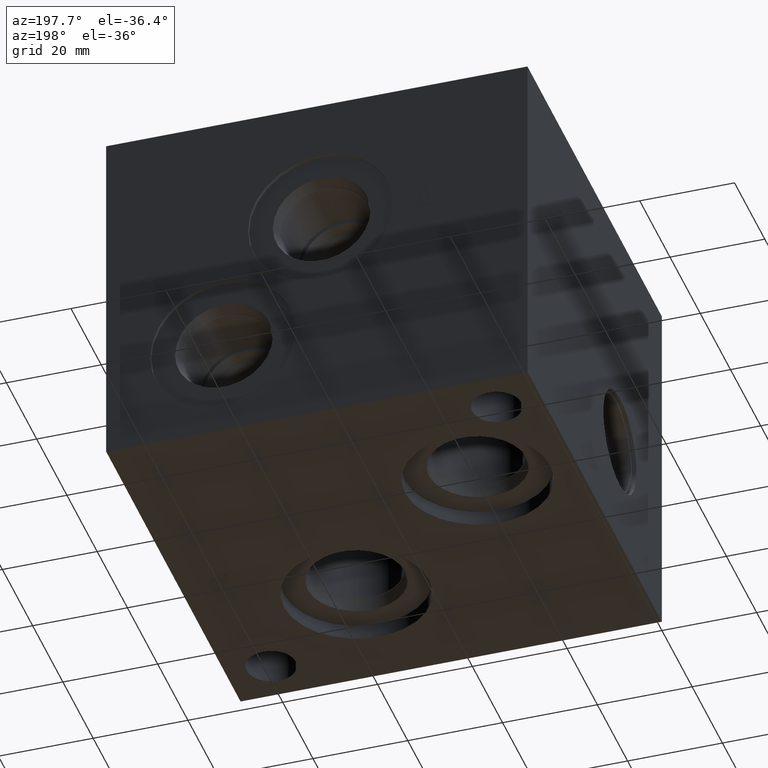
[diagram: clean part render]
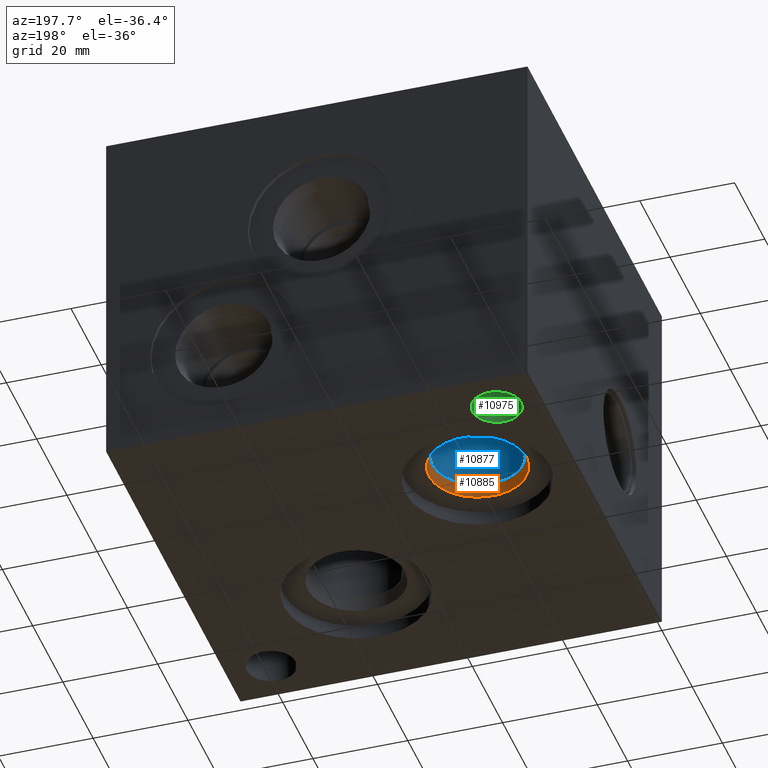
[diagram: same view with three faces highlighted in distinct colors, each labeled with its STEP entity id]
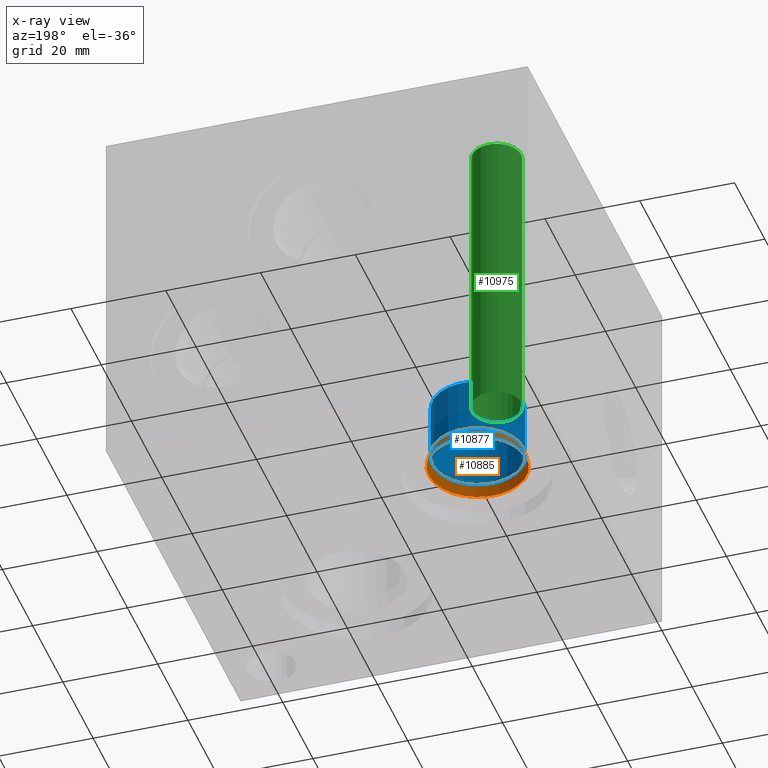
[diagram: x-ray of the same camera — body ghosted, the three highlighted faces saturated]
A machine part, auxiliary view with three faces highlighted in distinct colors.
The next image is the same camera in x-ray (body ghosted, the three faces saturated) — at least one of them is partly hidden behind the body in this view.
Their STEP definitions:

[orange] entity #10885 — the highlighted conical surface has half-angle 15.05 deg.
#20=CONICAL_SURFACE('',#11347,9.96315,0.262678410964687);
#145=CIRCLE('',#11345,10.2997);
#146=CIRCLE('',#11346,10.2997);
#147=CIRCLE('',#11348,9.6266);
#148=CIRCLE('',#11349,9.6266);
#1163=FACE_OUTER_BOUND('',#1778,.T.);
#1778=EDGE_LOOP('',(#9332,#9333,#9334,#9335,#9336,#9337));
#2832=LINE('',#18502,#3836);
#3836=VECTOR('',#13232,9.96315);
#5096=VERTEX_POINT('',#18496);
#5097=VERTEX_POINT('',#18497);
#5098=VERTEX_POINT('',#18501);
#5099=VERTEX_POINT('',#18503);
#6554=EDGE_CURVE('',#5096,#5097,#145,.T.);
#6555=EDGE_CURVE('',#5097,#5096,#146,.T.);
#6556=EDGE_CURVE('',#5097,#5098,#2832,.T.);
#6557=EDGE_CURVE('',#5098,#5099,#147,.T.);
#6558=EDGE_CURVE('',#5099,#5098,#148,.T.);
#9332=ORIENTED_EDGE('',*,*,#6554,.F.);
#9333=ORIENTED_EDGE('',*,*,#6555,.F.);
#9334=ORIENTED_EDGE('',*,*,#6556,.T.);
#9335=ORIENTED_EDGE('',*,*,#6557,.T.);
#9336=ORIENTED_EDGE('',*,*,#6558,.T.);
#9337=ORIENTED_EDGE('',*,*,#6556,.F.);
#10885=ADVANCED_FACE('',(#1163),#20,.F.);
#11345=AXIS2_PLACEMENT_3D('',#18498,#13226,#13227);
#11346=AXIS2_PLACEMENT_3D('',#18499,#13228,#13229);
#11347=AXIS2_PLACEMENT_3D('',#18500,#13230,#13231);
#11348=AXIS2_PLACEMENT_3D('',#18504,#13233,#13234);
#11349=AXIS2_PLACEMENT_3D('',#18505,#13235,#13236);
#13226=DIRECTION('center_axis',(0.,0.,1.));
#13227=DIRECTION('ref_axis',(1.,0.,0.));
#13228=DIRECTION('center_axis',(0.,0.,1.));
#13229=DIRECTION('ref_axis',(1.,0.,0.));
#13230=DIRECTION('center_axis',(0.,0.,-1.));
#13231=DIRECTION('ref_axis',(1.,0.,0.));
#13232=DIRECTION('',(0.259668016178309,3.1800160485371E-17,0.965697945205446));
#13233=DIRECTION('center_axis',(0.,0.,1.));
#13234=DIRECTION('ref_axis',(1.,0.,0.));
#13235=DIRECTION('center_axis',(0.,0.,1.));
#13236=DIRECTION('ref_axis',(1.,0.,0.));
#18496=CARTESIAN_POINT('',(30.9245,57.15,3.175));
#18497=CARTESIAN_POINT('',(10.3251,57.15,3.175));
#18498=CARTESIAN_POINT('Origin',(20.6248,57.15,3.175));
#18499=CARTESIAN_POINT('Origin',(20.6248,57.15,3.175));
#18500=CARTESIAN_POINT('Origin',(20.6248,57.15,4.42661985));
#18501=CARTESIAN_POINT('',(10.9982,57.15,5.6782397));
#18502=CARTESIAN_POINT('',(10.66165,57.15,4.42661985));
#18503=CARTESIAN_POINT('',(30.2514,57.15,5.6782397));
#18504=CARTESIAN_POINT('Origin',(20.6248,57.15,5.6782397));
#18505=CARTESIAN_POINT('Origin',(20.6248,57.15,5.6782397));

[blue] entity #10877 — the highlighted cylindrical surface (bore or boss wall) has radius 9.525 mm, axis along (0, 0, -1).
#54=CYLINDRICAL_SURFACE('',#11329,9.525);
#134=CIRCLE('',#11326,9.525);
#135=CIRCLE('',#11327,9.525);
#137=CIRCLE('',#11330,9.525);
#1155=FACE_OUTER_BOUND('',#1768,.T.);
#1768=EDGE_LOOP('',(#9294,#9295,#9296,#9297,#9298));
#2826=LINE('',#18469,#3830);
#3830=VECTOR('',#13192,9.525);
#5085=VERTEX_POINT('',#18460);
#5086=VERTEX_POINT('',#18461);
#5088=VERTEX_POINT('',#18467);
#6537=EDGE_CURVE('',#5085,#5086,#134,.T.);
#6538=EDGE_CURVE('',#5086,#5085,#135,.T.);
#6540=EDGE_CURVE('',#5088,#5088,#137,.T.);
#6541=EDGE_CURVE('',#5088,#5086,#2826,.T.);
#9294=ORIENTED_EDGE('',*,*,#6540,.F.);
#9295=ORIENTED_EDGE('',*,*,#6541,.T.);
#9296=ORIENTED_EDGE('',*,*,#6537,.F.);
#9297=ORIENTED_EDGE('',*,*,#6538,.F.);
#9298=ORIENTED_EDGE('',*,*,#6541,.F.);
#10877=ADVANCED_FACE('',(#1155),#54,.F.);
#11326=AXIS2_PLACEMENT_3D('',#18462,#13182,#13183);
#11327=AXIS2_PLACEMENT_3D('',#18463,#13184,#13185);
#11329=AXIS2_PLACEMENT_3D('',#18466,#13188,#13189);
#11330=AXIS2_PLACEMENT_3D('',#18468,#13190,#13191);
#13182=DIRECTION('center_axis',(0.,0.,-1.));
#13183=DIRECTION('ref_axis',(1.,0.,0.));
#13184=DIRECTION('center_axis',(0.,0.,-1.));
#13185=DIRECTION('ref_axis',(1.,0.,0.));
#13188=DIRECTION('center_axis',(0.,0.,-1.));
#13189=DIRECTION('ref_axis',(1.,0.,0.));
#13190=DIRECTION('center_axis',(0.,0.,1.));
#13191=DIRECTION('ref_axis',(1.,0.,0.));
#13192=DIRECTION('',(0.,0.,1.));
#18460=CARTESIAN_POINT('',(30.1498,57.15,17.4498));
#18461=CARTESIAN_POINT('',(11.0998,57.15,17.4498));
#18462=CARTESIAN_POINT('Origin',(20.6248,57.15,17.4498));
#18463=CARTESIAN_POINT('Origin',(20.6248,57.15,17.4498));
#18466=CARTESIAN_POINT('Origin',(20.6248,57.15,8.7249));
#18467=CARTESIAN_POINT('',(11.0998,57.15,5.7912));
#18468=CARTESIAN_POINT('Origin',(20.6248,57.15,5.7912));
#18469=CARTESIAN_POINT('',(11.0998,57.15,8.7249));

[green] entity #10975 — the highlighted cylindrical surface (bore or boss wall) has radius 5.1562 mm, axis along (0, 0, 1).
#102=CYLINDRICAL_SURFACE('',#11591,5.1562);
#103=CIRCLE('',#11006,5.1562);
#298=CIRCLE('',#11587,5.1562);
#1253=FACE_OUTER_BOUND('',#1885,.T.);
#1885=EDGE_LOOP('',(#9773,#9774,#9775,#9776));
#2905=LINE('',#18986,#3909);
#3909=VECTOR('',#13793,5.1562);
#4266=VERTEX_POINT('',#14019);
#5263=VERTEX_POINT('',#18977);
#5318=EDGE_CURVE('',#4266,#4266,#103,.T.);
#6779=EDGE_CURVE('',#5263,#5263,#298,.T.);
#6783=EDGE_CURVE('',#5263,#4266,#2905,.T.);
#9773=ORIENTED_EDGE('',*,*,#6779,.T.);
#9774=ORIENTED_EDGE('',*,*,#6783,.T.);
#9775=ORIENTED_EDGE('',*,*,#5318,.F.);
#9776=ORIENTED_EDGE('',*,*,#6783,.F.);
#10975=ADVANCED_FACE('',(#1253),#102,.F.);
#11006=AXIS2_PLACEMENT_3D('',#14020,#11656,#11657);
#11587=AXIS2_PLACEMENT_3D('',#18978,#13782,#13783);
#11591=AXIS2_PLACEMENT_3D('',#18985,#13791,#13792);
#11656=DIRECTION('center_axis',(0.,0.,1.));
#11657=DIRECTION('ref_axis',(1.,0.,0.));
#13782=DIRECTION('center_axis',(0.,0.,1.));
#13783=DIRECTION('ref_axis',(1.,0.,0.));
#13791=DIRECTION('center_axis',(0.,0.,1.));
#13792=DIRECTION('ref_axis',(1.,0.,0.));
#13793=DIRECTION('',(0.,0.,-1.));
#14019=CARTESIAN_POINT('',(4.3688,79.375,0.));
#14020=CARTESIAN_POINT('Origin',(9.525,79.375,0.));
#18977=CARTESIAN_POINT('',(4.3688,79.375,61.9252));
#18978=CARTESIAN_POINT('Origin',(9.525,79.375,61.9252));
#18985=CARTESIAN_POINT('Origin',(9.525,79.375,-70.8131286654359));
#18986=CARTESIAN_POINT('',(4.3688,79.375,-70.8131286654359));